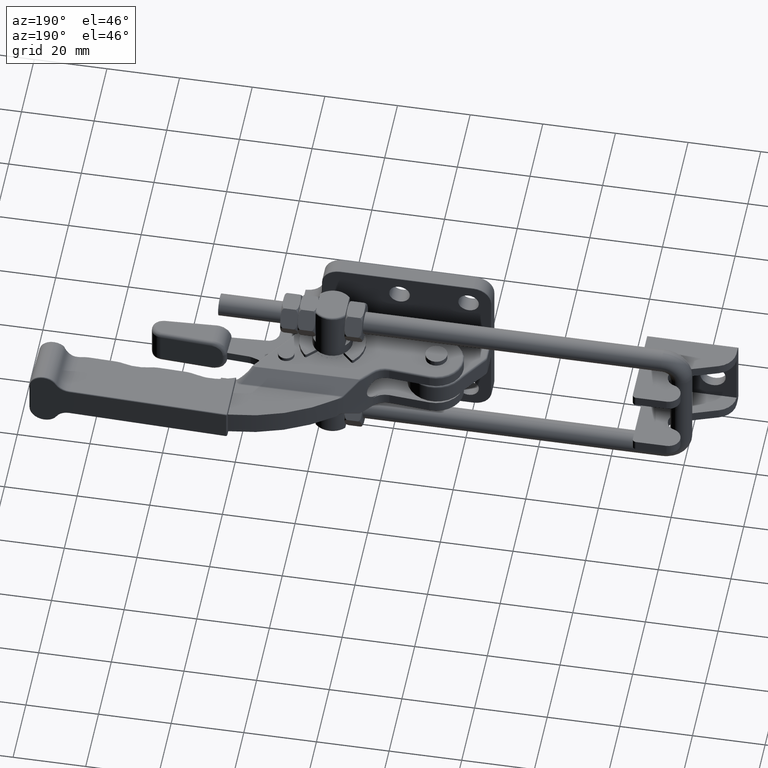
[diagram: clean part render]
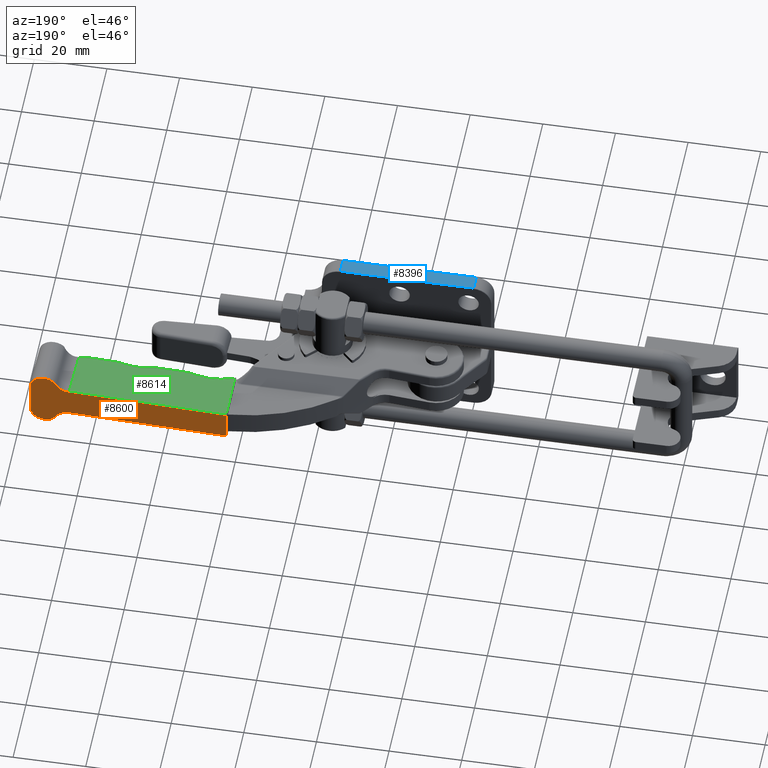
[diagram: same view with three faces highlighted in distinct colors, each labeled with its STEP entity id]
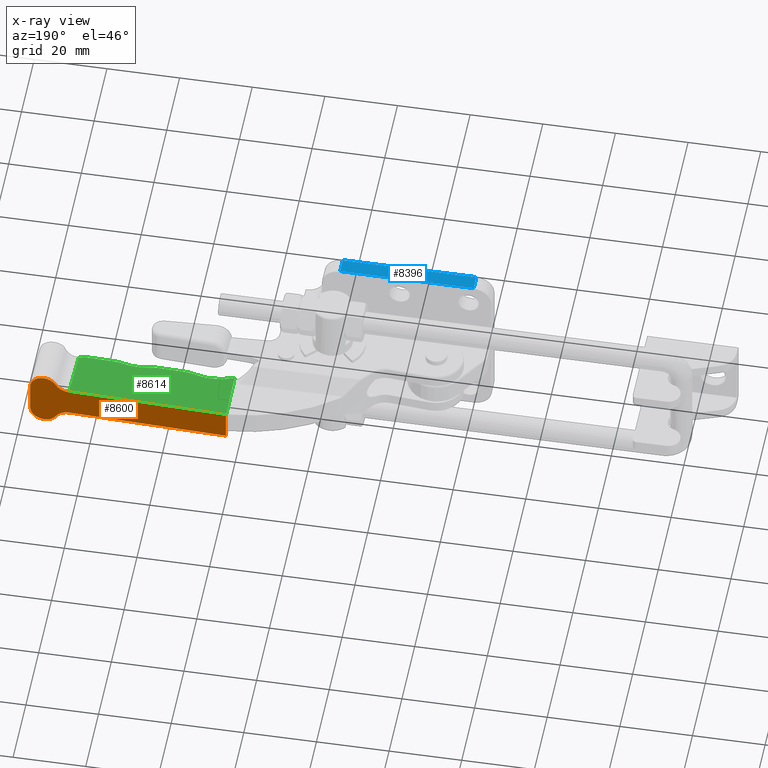
[diagram: x-ray of the same camera — body ghosted, the three highlighted faces saturated]
A machine part, auxiliary view with three faces highlighted in distinct colors.
The next image is the same camera in x-ray (body ghosted, the three faces saturated) — at least one of them is partly hidden behind the body in this view.
Their STEP definitions:

[orange] entity #8600 — the highlighted planar face has unit normal (0.0279, 0.9996, -0).
#857=PLANE('',#9435);
#1189=LINE('',#18174,#1631);
#1190=LINE('',#18179,#1632);
#1191=LINE('',#18181,#1633);
#1192=LINE('',#18187,#1634);
#1193=LINE('',#18191,#1635);
#1194=LINE('',#18195,#1636);
#1631=VECTOR('',#11287,7.9);
#1632=VECTOR('',#11294,43.4044957552724);
#1633=VECTOR('',#11295,43.4044957553423);
#1634=VECTOR('',#11300,0.0717967697818654);
#1635=VECTOR('',#11303,8.5);
#1636=VECTOR('',#11306,0.0717967697818654);
#2270=FACE_OUTER_BOUND('',#2847,.T.);
#2847=EDGE_LOOP('',(#7029,#7030,#7031,#7032,#7033,#7034,#7035,#7036,#7037,
#7038,#7039,#7040));
#3404=CIRCLE('',#9436,4.3);
#3405=CIRCLE('',#9437,3.7);
#3406=CIRCLE('',#9438,3.7);
#3407=CIRCLE('',#9439,3.7);
#3408=CIRCLE('',#9440,3.7);
#3409=CIRCLE('',#9441,4.3);
#4040=VERTEX_POINT('',#18172);
#4041=VERTEX_POINT('',#18173);
#4042=VERTEX_POINT('',#18178);
#4043=VERTEX_POINT('',#18180);
#4044=VERTEX_POINT('',#18182);
#4045=VERTEX_POINT('',#18184);
#4046=VERTEX_POINT('',#18186);
#4047=VERTEX_POINT('',#18188);
#4048=VERTEX_POINT('',#18190);
#4049=VERTEX_POINT('',#18192);
#4050=VERTEX_POINT('',#18194);
#4051=VERTEX_POINT('',#18196);
#5107=EDGE_CURVE('',#4040,#4041,#1189,.T.);
#5110=EDGE_CURVE('',#4041,#4042,#1190,.T.);
#5111=EDGE_CURVE('',#4043,#4040,#1191,.T.);
#5112=EDGE_CURVE('',#4044,#4043,#3404,.T.);
#5113=EDGE_CURVE('',#4045,#4044,#3405,.T.);
#5114=EDGE_CURVE('',#4046,#4045,#1192,.T.);
#5115=EDGE_CURVE('',#4047,#4046,#3406,.T.);
#5116=EDGE_CURVE('',#4048,#4047,#1193,.T.);
#5117=EDGE_CURVE('',#4049,#4048,#3407,.T.);
#5118=EDGE_CURVE('',#4050,#4049,#1194,.T.);
#5119=EDGE_CURVE('',#4051,#4050,#3408,.T.);
#5120=EDGE_CURVE('',#4042,#4051,#3409,.T.);
#7029=ORIENTED_EDGE('',*,*,#5110,.F.);
#7030=ORIENTED_EDGE('',*,*,#5107,.F.);
#7031=ORIENTED_EDGE('',*,*,#5111,.F.);
#7032=ORIENTED_EDGE('',*,*,#5112,.F.);
#7033=ORIENTED_EDGE('',*,*,#5113,.F.);
#7034=ORIENTED_EDGE('',*,*,#5114,.F.);
#7035=ORIENTED_EDGE('',*,*,#5115,.F.);
#7036=ORIENTED_EDGE('',*,*,#5116,.F.);
#7037=ORIENTED_EDGE('',*,*,#5117,.F.);
#7038=ORIENTED_EDGE('',*,*,#5118,.F.);
#7039=ORIENTED_EDGE('',*,*,#5119,.F.);
#7040=ORIENTED_EDGE('',*,*,#5120,.F.);
#8600=ADVANCED_FACE('',(#2270),#857,.T.);
#9435=AXIS2_PLACEMENT_3D('',#18177,#11292,#11293);
#9436=AXIS2_PLACEMENT_3D('',#18183,#11296,#11297);
#9437=AXIS2_PLACEMENT_3D('',#18185,#11298,#11299);
#9438=AXIS2_PLACEMENT_3D('',#18189,#11301,#11302);
#9439=AXIS2_PLACEMENT_3D('',#18193,#11304,#11305);
#9440=AXIS2_PLACEMENT_3D('',#18197,#11307,#11308);
#9441=AXIS2_PLACEMENT_3D('',#18198,#11309,#11310);
#11287=DIRECTION('',(0.,0.,-1.));
#11292=DIRECTION('center_axis',(0.033459756340951,0.99944006558953,0.));
#11293=DIRECTION('ref_axis',(0.99944006558953,-0.0334597563409497,0.));
#11294=DIRECTION('',(0.99944006558953,-0.033459756340951,-7.69832805450923E-12));
#11295=DIRECTION('',(-0.99944006558953,0.033459756340951,-3.04647407040009E-12));
#11296=DIRECTION('center_axis',(0.033459756340951,0.99944006558953,0.));
#11297=DIRECTION('ref_axis',(0.865540486390921,-0.0289769989967188,-0.499999999947312));
#11298=DIRECTION('center_axis',(-0.033459756340951,-0.99944006558953,0.));
#11299=DIRECTION('ref_axis',(0.,0.,1.));
#11300=DIRECTION('',(-0.999440065589528,0.0334597563410209,8.65951067403024E-14));
#11301=DIRECTION('center_axis',(-0.033459756340951,-0.99944006558953,0.));
#11302=DIRECTION('ref_axis',(0.99944006558953,-0.033459756340951,1.99240023878706E-14));
#11303=DIRECTION('',(0.,0.,1.));
#11304=DIRECTION('center_axis',(-0.033459756340951,-0.99944006558953,0.));
#11305=DIRECTION('ref_axis',(0.,0.,-1.));
#11306=DIRECTION('',(0.999440065589528,-0.0334597563410209,4.57716992770213E-13));
#11307=DIRECTION('center_axis',(-0.033459756340951,-0.99944006558953,0.));
#11308=DIRECTION('ref_axis',(-0.865540486501267,0.0289769990004131,-0.499999999756081));
#11309=DIRECTION('center_axis',(0.033459756340951,0.99944006558953,0.));
#11310=DIRECTION('ref_axis',(0.,0.,1.));
#18172=CARTESIAN_POINT('',(53.02818121914,28.51133362947,3.95));
#18173=CARTESIAN_POINT('',(53.02818121914,28.51133362947,-3.95));
#18174=CARTESIAN_POINT('',(53.02818121914,28.51133362947,3.95));
#18177=CARTESIAN_POINT('Origin',(107.4022140252,26.69097245764,-6.65));
#18178=CARTESIAN_POINT('',(96.40837330367,27.0590297774,-3.950000000334));
#18179=CARTESIAN_POINT('',(53.02818121914,28.51133362947,-3.95));
#18180=CARTESIAN_POINT('',(96.40837330374,27.0590297774,3.95));
#18181=CARTESIAN_POINT('',(96.40837330371,27.0590297774,3.950000000132));
#18182=CARTESIAN_POINT('',(100.1301973952,26.93442868171,6.100000000226));
#18183=CARTESIAN_POINT('Origin',(96.40837330374,27.0590297774,8.25));
#18184=CARTESIAN_POINT('',(103.3326971946,26.82721378543,7.95));
#18185=CARTESIAN_POINT('Origin',(103.3326971946,26.82721378543,4.25));
#18186=CARTESIAN_POINT('',(103.4044537629,26.82481148301,7.95));
#18187=CARTESIAN_POINT('',(103.4044537629,26.82481148301,7.95));
#18188=CARTESIAN_POINT('',(107.1023820056,26.70101038455,4.25));
#18189=CARTESIAN_POINT('Origin',(103.4044537629,26.82481148301,4.25));
#18190=CARTESIAN_POINT('',(107.1023820056,26.70101038455,-4.25));
#18191=CARTESIAN_POINT('',(107.1023820056,26.70101038455,-4.25));
#18192=CARTESIAN_POINT('',(103.4044537629,26.82481148301,-7.95));
#18193=CARTESIAN_POINT('Origin',(103.4044537629,26.82481148301,-4.25));
#18194=CARTESIAN_POINT('',(103.3326971946,26.82721378543,-7.95));
#18195=CARTESIAN_POINT('',(103.3326971946,26.82721378543,-7.95));
#18196=CARTESIAN_POINT('',(100.130197394751,26.9344286817277,-6.09999999940768));
#18197=CARTESIAN_POINT('Origin',(103.3326971946,26.82721378543,-4.25));
#18198=CARTESIAN_POINT('Origin',(96.40837330374,27.0590297774,-8.25));

[blue] entity #8396 — the highlighted planar face has unit normal (0, 0, 1).
#788=PLANE('',#9042);
#997=LINE('',#13738,#1439);
#998=LINE('',#13743,#1440);
#999=LINE('',#13747,#1441);
#1000=LINE('',#13748,#1442);
#1439=VECTOR('',#10305,4.1);
#1440=VECTOR('',#10312,36.7);
#1441=VECTOR('',#10317,36.7);
#1442=VECTOR('',#10318,4.1);
#2066=FACE_OUTER_BOUND('',#2599,.T.);
#2599=EDGE_LOOP('',(#6100,#6101,#6102,#6103));
#3755=VERTEX_POINT('',#13734);
#3756=VERTEX_POINT('',#13736);
#3757=VERTEX_POINT('',#13742);
#3758=VERTEX_POINT('',#13746);
#4656=EDGE_CURVE('',#3755,#3756,#997,.T.);
#4658=EDGE_CURVE('',#3757,#3755,#998,.T.);
#4660=EDGE_CURVE('',#3756,#3758,#999,.T.);
#4661=EDGE_CURVE('',#3758,#3757,#1000,.T.);
#6100=ORIENTED_EDGE('',*,*,#4658,.T.);
#6101=ORIENTED_EDGE('',*,*,#4656,.T.);
#6102=ORIENTED_EDGE('',*,*,#4660,.T.);
#6103=ORIENTED_EDGE('',*,*,#4661,.T.);
#8396=ADVANCED_FACE('',(#2066),#788,.T.);
#9042=AXIS2_PLACEMENT_3D('',#13745,#10315,#10316);
#10305=DIRECTION('',(0.,1.,0.));
#10312=DIRECTION('',(1.,0.,0.));
#10315=DIRECTION('center_axis',(0.,0.,1.));
#10316=DIRECTION('ref_axis',(1.,0.,0.));
#10317=DIRECTION('',(-1.,0.,0.));
#10318=DIRECTION('',(0.,-1.,0.));
#13734=CARTESIAN_POINT('',(15.7,0.2,22.3));
#13736=CARTESIAN_POINT('',(15.7,4.3,22.3));
#13738=CARTESIAN_POINT('',(15.7,0.2,22.3));
#13742=CARTESIAN_POINT('',(-21.,0.2,22.3));
#13743=CARTESIAN_POINT('',(-21.,0.2,22.3));
#13745=CARTESIAN_POINT('Origin',(-26.,0.,22.3));
#13746=CARTESIAN_POINT('',(-21.,4.3,22.3));
#13747=CARTESIAN_POINT('',(15.7,4.3,22.3));
#13748=CARTESIAN_POINT('',(-21.,4.3,22.3));

[green] entity #8614 — the highlighted planar face has unit normal (0, 0, 1).
#862=PLANE('',#9483);
#1216=LINE('',#18408,#1658);
#1217=LINE('',#18410,#1659);
#1218=LINE('',#18412,#1660);
#1219=LINE('',#18418,#1661);
#1220=LINE('',#18425,#1662);
#1221=LINE('',#18428,#1663);
#1658=VECTOR('',#11416,43.4044957547465);
#1659=VECTOR('',#11417,0.827867623349633);
#1660=VECTOR('',#11418,12.87588932004);
#1661=VECTOR('',#11423,6.93123076073992);
#1662=VECTOR('',#11430,6.84489398755953);
#1663=VECTOR('',#11433,12.8708852689704);
#2284=FACE_OUTER_BOUND('',#2861,.T.);
#2861=EDGE_LOOP('',(#7112,#7113,#7114,#7115,#7116,#7117,#7118,#7119,#7120,
#7121,#7122,#7123,#7124));
#3435=CIRCLE('',#9480,9.7);
#3438=CIRCLE('',#9484,15.76683933112);
#3439=CIRCLE('',#9485,9.7);
#3440=CIRCLE('',#9486,9.7);
#3441=CIRCLE('',#9487,14.85586951586);
#3442=CIRCLE('',#9488,9.7);
#3443=CIRCLE('',#9489,13.97978212678);
#4093=VERTEX_POINT('',#18400);
#4094=VERTEX_POINT('',#18401);
#4095=VERTEX_POINT('',#18406);
#4096=VERTEX_POINT('',#18407);
#4097=VERTEX_POINT('',#18409);
#4098=VERTEX_POINT('',#18411);
#4099=VERTEX_POINT('',#18413);
#4100=VERTEX_POINT('',#18415);
#4101=VERTEX_POINT('',#18417);
#4102=VERTEX_POINT('',#18419);
#4103=VERTEX_POINT('',#18421);
#4104=VERTEX_POINT('',#18423);
#4105=VERTEX_POINT('',#18426);
#5173=EDGE_CURVE('',#4093,#4094,#3435,.T.);
#5176=EDGE_CURVE('',#4095,#4096,#1216,.T.);
#5177=EDGE_CURVE('',#4096,#4097,#1217,.T.);
#5178=EDGE_CURVE('',#4097,#4098,#1218,.T.);
#5179=EDGE_CURVE('',#4098,#4099,#3438,.T.);
#5180=EDGE_CURVE('',#4099,#4100,#3439,.T.);
#5181=EDGE_CURVE('',#4100,#4101,#1219,.T.);
#5182=EDGE_CURVE('',#4101,#4102,#3440,.T.);
#5183=EDGE_CURVE('',#4102,#4103,#3441,.T.);
#5184=EDGE_CURVE('',#4103,#4104,#3442,.T.);
#5185=EDGE_CURVE('',#4104,#4093,#1220,.T.);
#5186=EDGE_CURVE('',#4094,#4105,#3443,.T.);
#5187=EDGE_CURVE('',#4105,#4095,#1221,.T.);
#7112=ORIENTED_EDGE('',*,*,#5176,.T.);
#7113=ORIENTED_EDGE('',*,*,#5177,.T.);
#7114=ORIENTED_EDGE('',*,*,#5178,.T.);
#7115=ORIENTED_EDGE('',*,*,#5179,.T.);
#7116=ORIENTED_EDGE('',*,*,#5180,.T.);
#7117=ORIENTED_EDGE('',*,*,#5181,.T.);
#7118=ORIENTED_EDGE('',*,*,#5182,.T.);
#7119=ORIENTED_EDGE('',*,*,#5183,.T.);
#7120=ORIENTED_EDGE('',*,*,#5184,.T.);
#7121=ORIENTED_EDGE('',*,*,#5185,.T.);
#7122=ORIENTED_EDGE('',*,*,#5173,.T.);
#7123=ORIENTED_EDGE('',*,*,#5186,.T.);
#7124=ORIENTED_EDGE('',*,*,#5187,.T.);
#8614=ADVANCED_FACE('',(#2284),#862,.T.);
#9480=AXIS2_PLACEMENT_3D('',#18402,#11408,#11409);
#9483=AXIS2_PLACEMENT_3D('',#18405,#11414,#11415);
#9484=AXIS2_PLACEMENT_3D('',#18414,#11419,#11420);
#9485=AXIS2_PLACEMENT_3D('',#18416,#11421,#11422);
#9486=AXIS2_PLACEMENT_3D('',#18420,#11424,#11425);
#9487=AXIS2_PLACEMENT_3D('',#18422,#11426,#11427);
#9488=AXIS2_PLACEMENT_3D('',#18424,#11428,#11429);
#9489=AXIS2_PLACEMENT_3D('',#18427,#11431,#11432);
#11408=DIRECTION('center_axis',(0.,0.,1.));
#11409=DIRECTION('ref_axis',(-0.033459756340951,-0.99944006558953,0.));
#11414=DIRECTION('center_axis',(0.,0.,1.));
#11415=DIRECTION('ref_axis',(1.,0.,0.));
#11416=DIRECTION('',(-0.99944006558953,0.033459756340951,0.));
#11417=DIRECTION('',(-0.033459756340951,-0.99944006558953,0.));
#11418=DIRECTION('',(0.,-1.,0.));
#11419=DIRECTION('center_axis',(0.,0.,-1.));
#11420=DIRECTION('ref_axis',(-0.391513738632707,0.920172262384517,0.));
#11421=DIRECTION('center_axis',(0.,0.,1.));
#11422=DIRECTION('ref_axis',(-0.313328566223093,-0.949644780740978,0.));
#11423=DIRECTION('',(0.99944006558953,-0.033459756340951,0.));
#11424=DIRECTION('center_axis',(0.,0.,1.));
#11425=DIRECTION('ref_axis',(-0.033459756340951,-0.99944006558953,0.));
#11426=DIRECTION('center_axis',(0.,0.,-1.));
#11427=DIRECTION('ref_axis',(-0.220309235840803,0.975430079812613,0.));
#11428=DIRECTION('center_axis',(0.,0.,1.));
#11429=DIRECTION('ref_axis',(-0.285054694804588,-0.95851125239606,0.));
#11430=DIRECTION('',(0.99944006558953,-0.033459756340951,0.));
#11431=DIRECTION('center_axis',(0.,0.,-1.));
#11432=DIRECTION('ref_axis',(-0.176494334833502,0.984301655881813,0.));
#11433=DIRECTION('',(0.0334597563505603,0.999440065589208,0.));
#18400=CARTESIAN_POINT('',(92.99636763554,13.6134801221,4.25));
#18401=CARTESIAN_POINT('',(95.03292231993,13.76032269626,4.25));
#18402=CARTESIAN_POINT('Origin',(93.32092727205,23.30804875831,4.25));
#18405=CARTESIAN_POINT('Origin',(0.,0.,4.25));
#18406=CARTESIAN_POINT('',(96.3983353762445,26.7591977577387,4.25));
#18407=CARTESIAN_POINT('',(53.01814329224,28.21150160979,4.25));
#18408=CARTESIAN_POINT('',(96.39833537525,26.75919775777,4.25));
#18409=CARTESIAN_POINT('',(52.99044304328,27.38409753801,4.25));
#18410=CARTESIAN_POINT('',(53.01814329224,28.21150160979,4.25));
#18411=CARTESIAN_POINT('',(52.99044304384,14.50820821797,4.25));
#18412=CARTESIAN_POINT('',(52.99044304328,27.38409753801,4.25));
#18413=CARTESIAN_POINT('',(64.1035784185721,14.9728966804818,4.25));
#18414=CARTESIAN_POINT('Origin',(59.16337725679,0.,4.25));
#18415=CARTESIAN_POINT('',(66.81830587458,14.4898824179,4.25));
#18416=CARTESIAN_POINT('Origin',(67.14286551109,24.18445105412,4.25));
#18417=CARTESIAN_POINT('',(73.74565560071,14.2579651255,4.25));
#18418=CARTESIAN_POINT('',(66.81830587458,14.4898824179,4.25));
#18419=CARTESIAN_POINT('',(76.20721482487,14.49086198754,4.25));
#18420=CARTESIAN_POINT('Origin',(74.07021523722,23.95253376172,4.25));
#18421=CARTESIAN_POINT('',(83.71483543656,14.23951809508,4.25));
#18422=CARTESIAN_POINT('Origin',(79.48010008566,0.,4.25));
#18423=CARTESIAN_POINT('',(86.15530633966,13.8425086071,4.25));
#18424=CARTESIAN_POINT('Origin',(86.47986597616,23.53707724332,4.25));
#18425=CARTESIAN_POINT('',(86.15530633966,13.8425086071,4.25));
#18426=CARTESIAN_POINT('',(95.9676786657624,13.895519341177,4.24999999999905));
#18427=CARTESIAN_POINT('Origin',(97.50027466752,0.,4.25));
#18428=CARTESIAN_POINT('',(95.96767869031,13.89551934555,4.25));